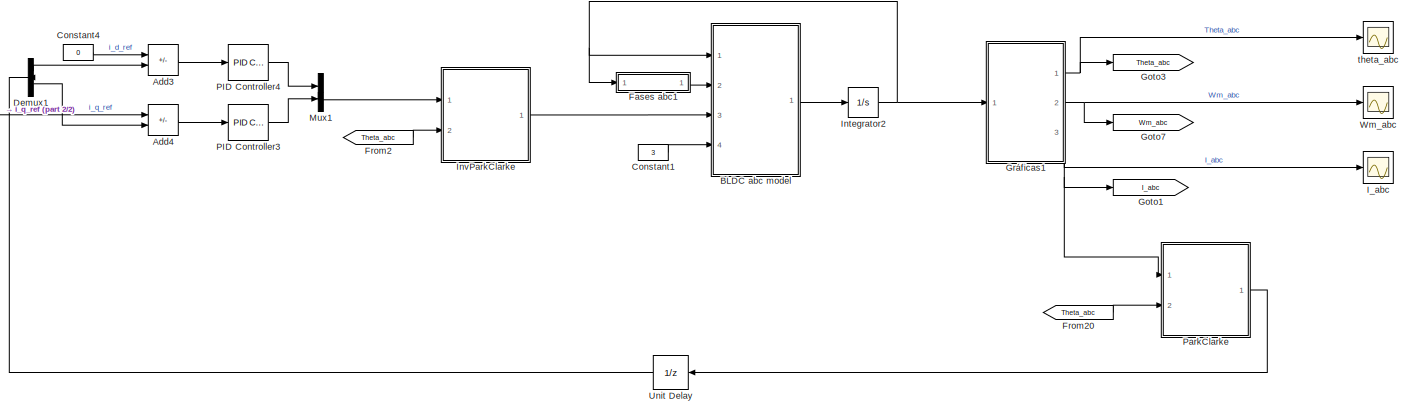
[diagram: root canvas - part 1/2, most of the canvas]
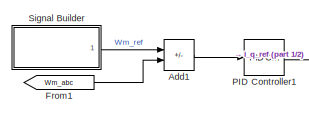
[diagram: root canvas - part 2/2, top left region]
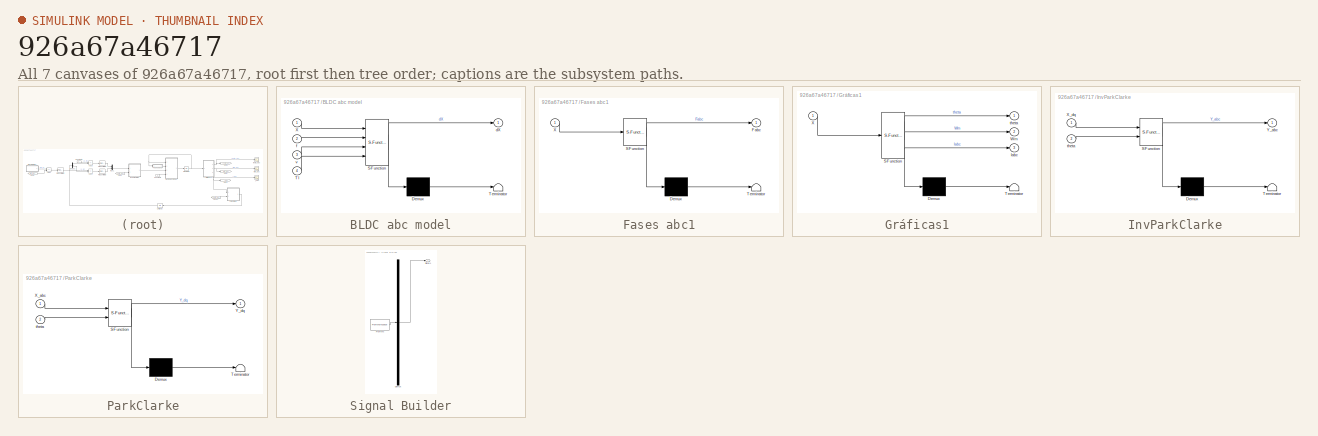
[diagram: thumbnail index - all 7 canvases of the model, root first then tree order]
MODEL slx_926a67a46717
KIND model
CONFIG AbsTol = auto
CONFIG EnableMultiTasking = off
CONFIG FixedStep = 0.00001
CONFIG MaxStep = auto
CONFIG MinStep = auto
CONFIG RelTol = 1e-3
CONFIG SampleTimeConstraint = Unconstrained
CONFIG SolverName = FixedStepAuto
CONFIG StartTime = 0.0
CONFIG StopTime = 10
BLOCK [Sum] Add1
  IconShape = rectangular
  Inputs = +-
  Ports = [2, 1]
BLOCK [Sum] Add3
  IconShape = rectangular
  Inputs = +-
  Ports = [2, 1]
BLOCK [Sum] Add4
  IconShape = rectangular
  Inputs = +-
  Ports = [2, 1]
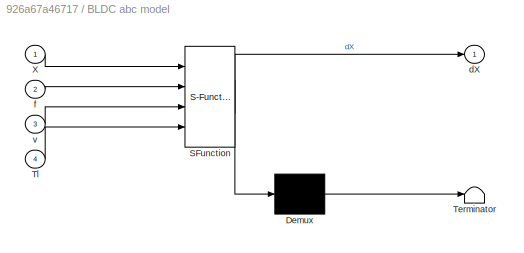
BLOCK [SubSystem] BLDC abc model
  ErrorFcn = Stateflow.Translate.translate
  PermitHierarchicalResolution = ExplicitOnly
  Ports = [4, 1]
  RequestExecContextInheritance = off
  SFBlockType = MATLAB Function
  TreatAsAtomicUnit = on
BLOCK [Demux] BLDC abc model/ Demux 
  Outputs = 1
  Ports = [1, 1]
BLOCK [S-Function] BLDC abc model/ SFunction 
  EnableBusSupport = on
  FunctionName = sf_sfun
  PortCounts = [4 2]
  Ports = [4, 2]
  SFcnIsStateOwnerBlock = off
  SFunctionDeploymentMode = off
  Tag = Stateflow S-Function 4
BLOCK [Terminator] BLDC abc model/ Terminator 
BLOCK [Inport] BLDC abc model/Tl
  Port = 4
BLOCK [Inport] BLDC abc model/X
BLOCK [Outport] BLDC abc model/dX
  VectorParamsAs1DForOutWhenUnconnected = off
BLOCK [Inport] BLDC abc model/f
  Port = 2
BLOCK [Inport] BLDC abc model/v
  Port = 3
BLOCK [Constant] Constant1
  Value = 3
BLOCK [Constant] Constant4
  Value = 0
BLOCK [Demux] Demux1
  Outputs = 2
  Ports = [1, 2]
BLOCK [SubSystem] Fases abc1
  ErrorFcn = Stateflow.Translate.translate
  PermitHierarchicalResolution = ExplicitOnly
  Ports = [1, 1]
  RequestExecContextInheritance = off
  SFBlockType = MATLAB Function
  TreatAsAtomicUnit = on
BLOCK [Demux] Fases abc1/ Demux 
  Outputs = 1
  Ports = [1, 1]
BLOCK [S-Function] Fases abc1/ SFunction 
  EnableBusSupport = on
  FunctionName = sf_sfun
  PortCounts = [1 2]
  Ports = [1, 2]
  SFcnIsStateOwnerBlock = off
  SFunctionDeploymentMode = off
  Tag = Stateflow S-Function 2
BLOCK [Terminator] Fases abc1/ Terminator 
BLOCK [Outport] Fases abc1/Fabc
  VectorParamsAs1DForOutWhenUnconnected = off
BLOCK [Inport] Fases abc1/X
BLOCK [From] From1
  GotoTag = Wm_abc
BLOCK [From] From2
  GotoTag = Theta_abc
BLOCK [From] From20
  GotoTag = Theta_abc
BLOCK [Goto] Goto1
  GotoTag = I_abc
BLOCK [Goto] Goto3
  GotoTag = Theta_abc
BLOCK [Goto] Goto7
  GotoTag = Wm_abc
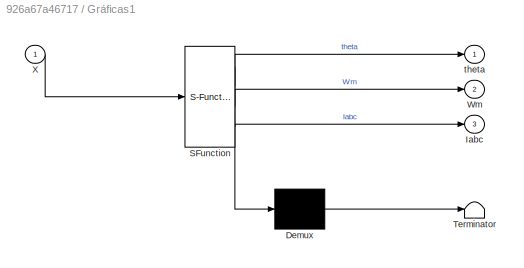
BLOCK [SubSystem] Gráficas1
  ErrorFcn = Stateflow.Translate.translate
  PermitHierarchicalResolution = ExplicitOnly
  Ports = [1, 3]
  RequestExecContextInheritance = off
  SFBlockType = MATLAB Function
  TreatAsAtomicUnit = on
BLOCK [Demux] Gráficas1/ Demux 
  Outputs = 1
  Ports = [1, 1]
BLOCK [S-Function] Gráficas1/ SFunction 
  EnableBusSupport = on
  FunctionName = sf_sfun
  PortCounts = [1 4]
  Ports = [1, 4]
  SFcnIsStateOwnerBlock = off
  SFunctionDeploymentMode = off
  Tag = Stateflow S-Function 6
BLOCK [Terminator] Gráficas1/ Terminator 
BLOCK [Outport] Gráficas1/Iabc
  Port = 3
  VectorParamsAs1DForOutWhenUnconnected = off
BLOCK [Outport] Gráficas1/Wm
  Port = 2
  VectorParamsAs1DForOutWhenUnconnected = off
BLOCK [Inport] Gráficas1/X
BLOCK [Outport] Gráficas1/theta
  VectorParamsAs1DForOutWhenUnconnected = off
BLOCK [Scope] I_abc
  Floating = off
  NumInputPorts = 1
  Ports = [1]
  ScopeSpecificationString = Simulink.scopes.TimeScopeBlockCfg('CurrentConfiguration', extmgr.ConfigurationSet(extmgr.Configuration('Core','General UI',true),extmgr.Configuration('Core','Source UI',true),extmgr.Configuration('Sources','WiredSimulink',true,'DataLoggingVariableName','ScopeData1'),extmgr.Configuration('Visuals','Time Domain',true,'SerializedDisplays',{struct('MinYLimReal','-18.92116','MaxYLimReal','18.85483','YL...<+1492ch>
BLOCK [Integrator] Integrator2
  InitialCondition = [0;0;0;1;0]
  Ports = [1, 1]
BLOCK [SubSystem] InvParkClarke
  ErrorFcn = Stateflow.Translate.translate
  PermitHierarchicalResolution = ExplicitOnly
  Ports = [2, 1]
  RequestExecContextInheritance = off
  SFBlockType = MATLAB Function
  TreatAsAtomicUnit = on
BLOCK [Demux] InvParkClarke/ Demux 
  Outputs = 1
  Ports = [1, 1]
BLOCK [S-Function] InvParkClarke/ SFunction 
  EnableBusSupport = on
  FunctionName = sf_sfun
  PortCounts = [2 2]
  Ports = [2, 2]
  SFcnIsStateOwnerBlock = off
  SFunctionDeploymentMode = off
  Tag = Stateflow S-Function 7
BLOCK [Terminator] InvParkClarke/ Terminator 
BLOCK [Inport] InvParkClarke/X_dq
BLOCK [Outport] InvParkClarke/Y_abc
  VectorParamsAs1DForOutWhenUnconnected = off
BLOCK [Inport] InvParkClarke/theta
  Port = 2
BLOCK [Mux] Mux1
  DisplayOption = bar
  Inputs = 2
  Ports = [2, 1]
BLOCK [Reference] PID Controller1  REF=pid_lib/PID Controller
  Ports = [1, 1]
  SourceBlock = pid_lib/PID Controller
  SourceProductBaseCode = SL
  SourceType = PID 1dof
BLOCK [Reference] PID Controller3  REF=pid_lib/PID Controller
  Ports = [1, 1]
  SourceBlock = pid_lib/PID Controller
  SourceProductBaseCode = SL
  SourceType = PID 1dof
BLOCK [Reference] PID Controller4  REF=pid_lib/PID Controller
  Ports = [1, 1]
  SourceBlock = pid_lib/PID Controller
  SourceProductBaseCode = SL
  SourceType = PID 1dof
BLOCK [SubSystem] ParkClarke
  ErrorFcn = Stateflow.Translate.translate
  PermitHierarchicalResolution = ExplicitOnly
  Ports = [2, 1]
  RequestExecContextInheritance = off
  SFBlockType = MATLAB Function
  TreatAsAtomicUnit = on
BLOCK [Demux] ParkClarke/ Demux 
  Outputs = 1
  Ports = [1, 1]
BLOCK [S-Function] ParkClarke/ SFunction 
  EnableBusSupport = on
  FunctionName = sf_sfun
  PortCounts = [2 2]
  Ports = [2, 2]
  SFcnIsStateOwnerBlock = off
  SFunctionDeploymentMode = off
  Tag = Stateflow S-Function 9
BLOCK [Terminator] ParkClarke/ Terminator 
BLOCK [Inport] ParkClarke/X_abc
BLOCK [Outport] ParkClarke/Y_dq
  VectorParamsAs1DForOutWhenUnconnected = off
BLOCK [Inport] ParkClarke/theta
  Port = 2
BLOCK [SubSystem] Signal Builder
  ClipboardFcn = sigbuilder_block('clipboard');
  CloseFcn = sigbuilder_block('close');
  ContinueFcn = sigbuilder_block('continue');
  CopyFcn = sigbuilder_block('copy');
  DeleteFcn = sigbuilder_block('delete');
  LoadFcn = sigbuilder_block('load');
  MaskHideContents = on
  ModelCloseFcn = sigbuilder_block('modelClose');
  NameChangeFcn = sigbuilder_block('namechange');
  OpenFcn = sigbuilder_block('open',[437.6 199.2 550.4 400 ]);
  PauseFcn = sigbuilder_block('pause');
  Ports = [0, 1]
  PreSaveFcn = sigbuilder_block('preSave');
  RequestExecContextInheritance = off
  StartFcn = sigbuilder_block('start');
  StopFcn = sigbuilder_block('stop');
  Tag = STV Subsys
BLOCK [Demux] Signal Builder/Demux
  DisplayOption = none
  Outputs = 1
  Ports = [1, 1]
  Tag = STV Demux
BLOCK [FromWorkspace] Signal Builder/FromWs
  Tag = STV FromWs
  VariableName = tuvar
BLOCK [Outport] Signal Builder/Signal 1
  Tag = STV Outport
BLOCK [UnitDelay] Unit Delay
  HasFrameUpgradeWarning = on
  SampleTime = -1
BLOCK [Scope] Wm_abc
  Floating = off
  NumInputPorts = 1
  Ports = [1]
  ScopeSpecificationString = Simulink.scopes.TimeScopeBlockCfg('CurrentConfiguration', extmgr.ConfigurationSet(extmgr.Configuration('Core','General UI',true),extmgr.Configuration('Core','Source UI',true),extmgr.Configuration('Sources','WiredSimulink',true,'DataLoggingVariableName','ScopeData2'),extmgr.Configuration('Visuals','Time Domain',true,'SerializedDisplays',{struct('MinYLimReal','-54.2059','MaxYLimReal','22.70231','YLa...<+1434ch>
BLOCK [Scope] theta_abc
  Floating = off
  NumInputPorts = 1
  Ports = [1]
  ScopeSpecificationString = Simulink.scopes.TimeScopeBlockCfg('CurrentConfiguration', extmgr.ConfigurationSet(extmgr.Configuration('Core','General UI',true),extmgr.Configuration('Core','Source UI',true),extmgr.Configuration('Sources','WiredSimulink',true,'DataLoggingVariableName','ScopeData3'),extmgr.Configuration('Visuals','Time Domain',true,'SerializedDisplays',{struct('MinYLimReal','-23.14906','MaxYLimReal','186.08949','Y...<+1407ch>
LINE Add1:1 -> PID Controller1:1
LINE Add3:1 -> PID Controller4:1
LINE Add4:1 -> PID Controller3:1
LINE BLDC abc model:1 -> Integrator2:1
LINE Constant1:1 -> BLDC abc model:4
LINE Constant4:1 -> Add3:1
LINE Demux1:1 -> Add3:2
LINE Demux1:2 -> Add4:2
LINE Fases abc1:1 -> BLDC abc model:2
LINE From1:1 -> Add1:2
LINE From20:1 -> ParkClarke:2
LINE From2:1 -> InvParkClarke:2
NET Gráficas1:1 -> Goto3:1, theta_abc:1
NET Gráficas1:2 -> Goto7:1, Wm_abc:1
NET Gráficas1:3 -> Goto1:1, I_abc:1, ParkClarke:1
NET Integrator2:1 -> BLDC abc model:1, Fases abc1:1, Gráficas1:1
LINE InvParkClarke:1 -> BLDC abc model:3
LINE Mux1:1 -> InvParkClarke:1
LINE PID Controller1:1 -> Add4:1
LINE PID Controller3:1 -> Mux1:2
LINE PID Controller4:1 -> Mux1:1
LINE ParkClarke:1 -> Unit Delay:1
LINE Signal Builder:1 -> Add1:1
LINE Unit Delay:1 -> Demux1:1
note: NET lines group one-source signal fan-out (src -> all destinations, sorted); 1:1 wires keep LINE
CHART Fases abc1 states=1 transitions=1
  STATE_LABEL 'eML_blk_kernel()'
  STATE_LABEL 'SCRIPT:\nfunction Fabc = fcn(X)\nFabc = [0;0;0];\n    theta = mod(X(5),2*pi); %X(4)\n    %theta = mod(X,2*pi);\n    \n    if (0<=theta)&&(theta<(pi/6))\n        Fa = (6/pi)*theta;\n    elseif ((pi/6)<=theta)&&(theta<(5*pi/6))\n        Fa = 1;\n    elseif ((5*pi/6<=theta))&&(theta<(7*pi/6))\n        Fa = (6/pi)*(pi-theta);\n    elseif ((7*pi/6)<=theta)&&(theta<(11*pi/6))\n        Fa = -1;\n    elseif ((11*pi/6)<...<+996ch>'
CHART BLDC abc model states=1 transitions=1
  STATE_LABEL 'eML_blk_kernel()'
  STATE_LABEL 'SCRIPT:\nfunction dX = fcn(X,f,v,Tl)\nu = [v;Tl]; \ni_a = X(1); i_b = X(2); i_c = X(3); wm = X(4); theta = X(5);\n\nlambda = 0.0433;\nR = 0.35;\nL = 0.001;\nM = 0.000;\nJ = 0.00018;\nP = 4;\nb = 0.0034;\n\n%e = [(lamda*wm).*f;0;0];\n\nA =[-(R/(L-M)) 0 0 -(lambda/(L-M))*f(1) 0;...\n    0 -(R/(L-M)) 0 -(lambda/(L-M))*f(2) 0;...\n    0 0 -(R/(L-M)) -(lambda/(L-M))*f(3) 0;...\n    (lambda/J)*f(1) (lambda/J)*f(2) (lambd...<+139ch>'
CHART Gráficas1 states=1 transitions=1
  STATE_LABEL 'eML_blk_kernel()'
  STATE_LABEL 'SCRIPT:\nfunction [theta,Wm,Iabc] = DEMUX(X)\ntheta = X(5); Wm = X(4);Iabc = X(1:3);'
CHART InvParkClarke states=1 transitions=1
  STATE_LABEL 'eML_blk_kernel()'
  STATE_LABEL 'SCRIPT:\nfunction Y_abc = fcn(X_dq, theta)\nX_dq0 = [X_dq;0];\n\n%inverse Park-Clarke power invariant\niT_PC = sqrt(2/3)*[cos(theta)          -sin(theta)            1/sqrt(2); ...\n                  cos(theta-2*pi/3)   -sin(theta-2*pi/3)     1/sqrt(2); ...\n                  cos(theta+2*pi/3)   -sin(theta+2*pi/3)     1/sqrt(2)];\n%               \n              \n %inverse Park-Clarke amplitude invariant\n% ...<+204ch>'
CHART ParkClarke states=1 transitions=1
  STATE_LABEL 'eML_blk_kernel()'
  STATE_LABEL 'SCRIPT:\nfunction Y_dq = fcn(X_abc, theta)\n\n% Park clarke transform eliminating the third element\nPC_T = (sqrt(2)/2)*[sqrt(3)*cos(theta)  sin(theta)  -sin(theta) ; ...\n                    -sqrt(3)*sin(theta)  cos(theta)  -cos(theta)];\n\nY_dq =PC_T*X_abc;\nend'
CHART  states=0 transitions=0
CHART  states=0 transitions=0
CHART  states=0 transitions=0
CHART  states=0 transitions=0
CHART  states=0 transitions=0
